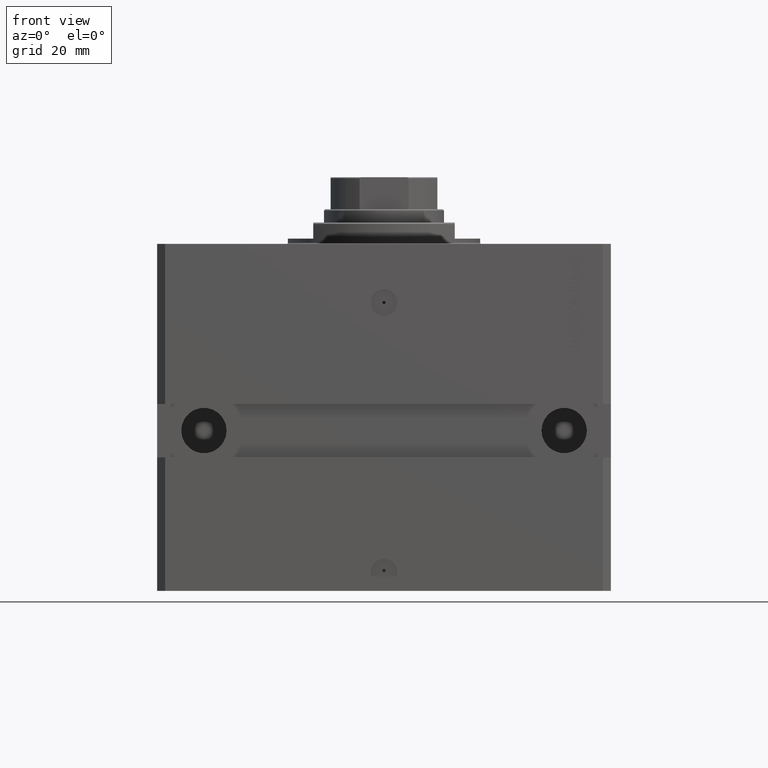
[diagram: clean part render]
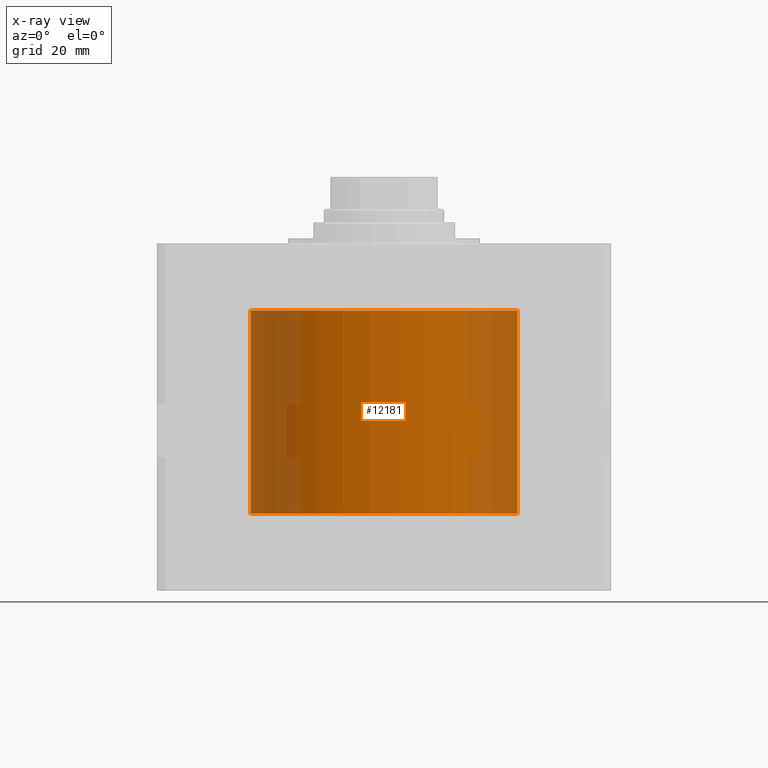
[diagram: x-ray — body ghosted, one internal face saturated and labeled with its STEP entity id]
A machine part, front view, then the same camera in x-ray: the body is ghosted and one INTERNAL B-rep face — a face not visible from any outside direction — is saturated and labeled: STEP entity #12181.
In plain terms, the highlighted cylindrical surface (partial cylindrical patch) has radius 50 mm, axis along (0, 0, 1).
Its self-contained STEP definition (entity closure, byte-faithful):
#2244 = CARTESIAN_POINT ( 'NONE',  ( 50.00000000000000000, 0.000000000000000000, -101.0999999999999943 ) ) ;
#2953 = EDGE_CURVE ( 'NONE', #23730, #10411, #28858, .T. ) ;
#3208 = VERTEX_POINT ( 'NONE', #36618 ) ;
#4661 = ORIENTED_EDGE ( 'NONE', *, *, #2953, .T. ) ;
#6726 = VERTEX_POINT ( 'NONE', #13406 ) ;
#7776 = CARTESIAN_POINT ( 'NONE',  ( 0.000000000000000000, 0.000000000000000000, -101.0999999999999943 ) ) ;
#7902 = CARTESIAN_POINT ( 'NONE',  ( 0.000000000000000000, 0.000000000000000000, -24.99999999999999289 ) ) ;
#10336 = CARTESIAN_POINT ( 'NONE',  ( 0.000000000000000000, 0.000000000000000000, -101.0999999999999943 ) ) ;
#10411 = VERTEX_POINT ( 'NONE', #48479 ) ;
#11447 = FACE_OUTER_BOUND ( 'NONE', #27527, .T. ) ;
#11651 = ORIENTED_EDGE ( 'NONE', *, *, #26054, .F. ) ;
#12181 = ADVANCED_FACE ( 'NONE', ( #11447 ), #41331, .F. ) ;
#13251 = EDGE_CURVE ( 'NONE', #23730, #3208, #48375, .T. ) ;
#13406 = CARTESIAN_POINT ( 'NONE',  ( 50.00000000000000000, 0.000000000000000000, -24.99999999999999289 ) ) ;
#14292 = CARTESIAN_POINT ( 'NONE',  ( -50.00000000000000000, 6.123233995736764507E-15, -101.0999999999999943 ) ) ;
#15212 = AXIS2_PLACEMENT_3D ( 'NONE', #7776, #22723, #37653 ) ;
#16485 = DIRECTION ( 'NONE',  ( 0.000000000000000000, 0.000000000000000000, 1.000000000000000000 ) ) ;
#17722 = VECTOR ( 'NONE', #22206, 1000.000000000000000 ) ;
#20624 = LINE ( 'NONE', #2244, #26541 ) ;
#21119 = DIRECTION ( 'NONE',  ( -0.000000000000000000, -0.000000000000000000, 1.000000000000000000 ) ) ;
#22206 = DIRECTION ( 'NONE',  ( -0.000000000000000000, -0.000000000000000000, 1.000000000000000000 ) ) ;
#22723 = DIRECTION ( 'NONE',  ( -0.000000000000000000, -0.000000000000000000, 1.000000000000000000 ) ) ;
#23442 = CIRCLE ( 'NONE', #37517, 50.00000000000000000 ) ;
#23730 = VERTEX_POINT ( 'NONE', #14292 ) ;
#26054 = EDGE_CURVE ( 'NONE', #3208, #6726, #20624, .T. ) ;
#26541 = VECTOR ( 'NONE', #21119, 1000.000000000000000 ) ;
#26715 = EDGE_CURVE ( 'NONE', #10411, #6726, #23442, .T. ) ;
#27527 = EDGE_LOOP ( 'NONE', ( #33123, #4661, #40093, #11651 ) ) ;
#28858 = LINE ( 'NONE', #44005, #17722 ) ;
#29723 = AXIS2_PLACEMENT_3D ( 'NONE', #10336, #46828, #47309 ) ;
#33123 = ORIENTED_EDGE ( 'NONE', *, *, #13251, .F. ) ;
#36618 = CARTESIAN_POINT ( 'NONE',  ( 50.00000000000000000, 0.000000000000000000, -101.0999999999999943 ) ) ;
#37517 = AXIS2_PLACEMENT_3D ( 'NONE', #7902, #16485, #45372 ) ;
#37653 = DIRECTION ( 'NONE',  ( 1.000000000000000000, 0.000000000000000000, 0.000000000000000000 ) ) ;
#40093 = ORIENTED_EDGE ( 'NONE', *, *, #26715, .T. ) ;
#41331 = CYLINDRICAL_SURFACE ( 'NONE', #15212, 50.00000000000000000 ) ;
#44005 = CARTESIAN_POINT ( 'NONE',  ( -50.00000000000000000, 6.123233995736764507E-15, -101.0999999999999943 ) ) ;
#45372 = DIRECTION ( 'NONE',  ( 1.000000000000000000, 0.000000000000000000, 0.000000000000000000 ) ) ;
#46828 = DIRECTION ( 'NONE',  ( 0.000000000000000000, 0.000000000000000000, 1.000000000000000000 ) ) ;
#47309 = DIRECTION ( 'NONE',  ( 1.000000000000000000, 0.000000000000000000, 0.000000000000000000 ) ) ;
#48375 = CIRCLE ( 'NONE', #29723, 50.00000000000000000 ) ;
#48479 = CARTESIAN_POINT ( 'NONE',  ( -50.00000000000000000, 6.123233995736764507E-15, -24.99999999999999289 ) ) ;